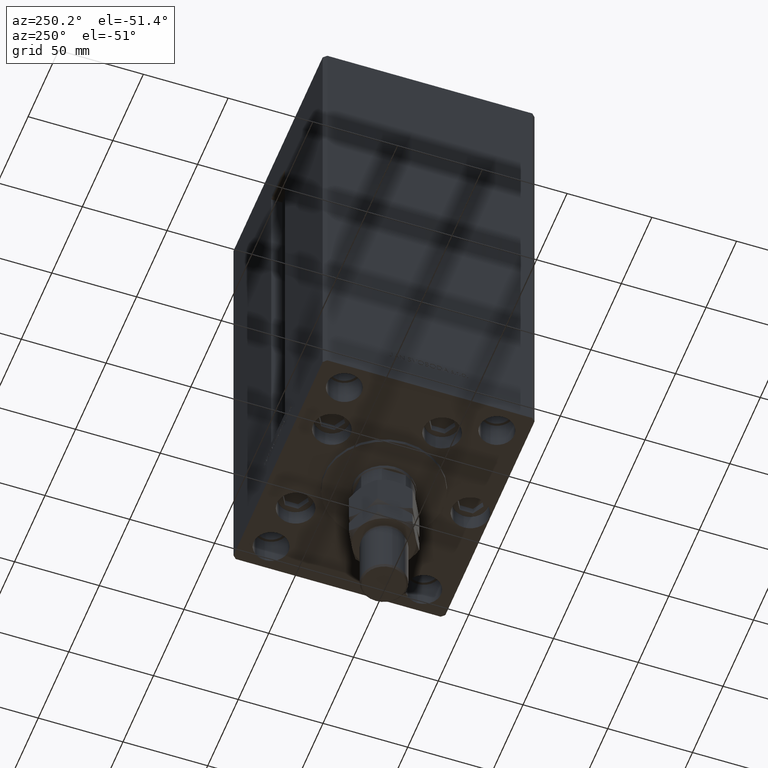
[diagram: clean part render]
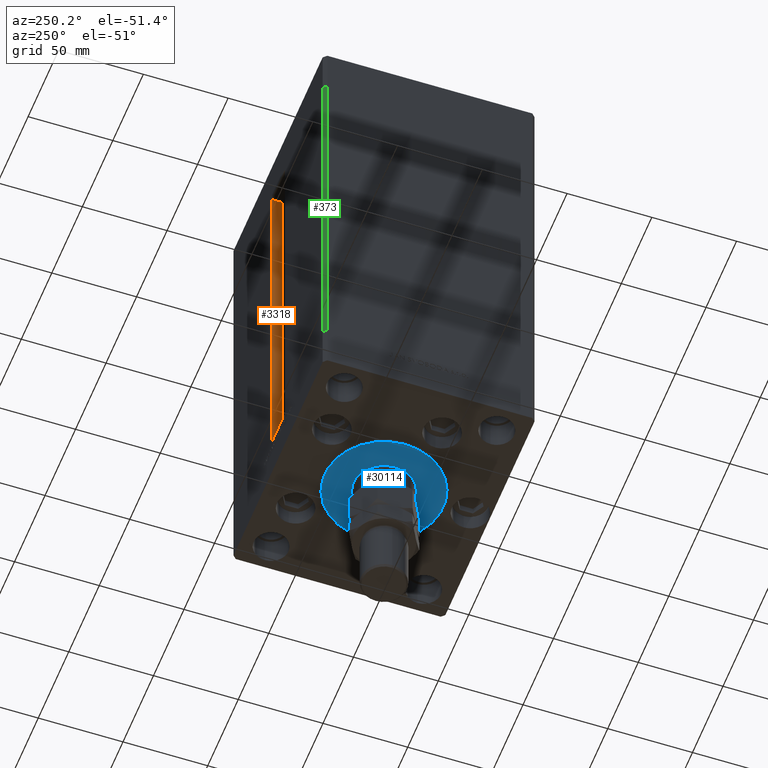
[diagram: same view with three faces highlighted in distinct colors, each labeled with its STEP entity id]
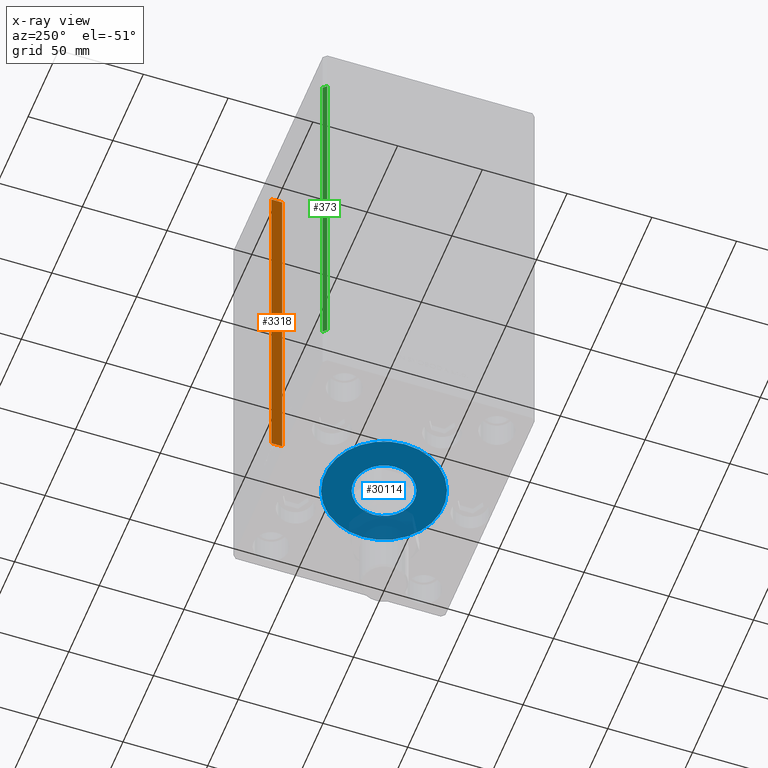
[diagram: x-ray of the same camera — body ghosted, the three highlighted faces saturated]
A machine part, auxiliary view with three faces highlighted in distinct colors.
The next image is the same camera in x-ray (body ghosted, the three faces saturated) — at least one of them is partly hidden behind the body in this view.
Their STEP definitions:

[orange] entity #3318 — the highlighted planar face has unit normal (1, 0, 0).
#1662 = ORIENTED_EDGE ( 'NONE', *, *, #35044, .T. ) ;
#3313 = VERTEX_POINT ( 'NONE', #21295 ) ;
#3318 = ADVANCED_FACE ( 'NONE', ( #18208 ), #41003, .F. ) ;
#5391 = VECTOR ( 'NONE', #8658, 1000.000000000000000 ) ;
#8658 = DIRECTION ( 'NONE',  ( 0.000000000000000000, 1.000000000000000000, 0.000000000000000000 ) ) ;
#9702 = VECTOR ( 'NONE', #11233, 1000.000000000000000 ) ;
#9872 = CARTESIAN_POINT ( 'NONE',  ( 11.25000000000000178, 55.99999999999999289, 0.000000000000000000 ) ) ;
#11233 = DIRECTION ( 'NONE',  ( -0.000000000000000000, -1.000000000000000000, 0.000000000000000000 ) ) ;
#11585 = AXIS2_PLACEMENT_3D ( 'NONE', #17965, #49156, #29706 ) ;
#11787 = CARTESIAN_POINT ( 'NONE',  ( 11.25000000000000178, 62.49999999999999289, 0.000000000000000000 ) ) ;
#13227 = LINE ( 'NONE', #28808, #38272 ) ;
#13738 = ORIENTED_EDGE ( 'NONE', *, *, #48029, .F. ) ;
#16193 = VERTEX_POINT ( 'NONE', #11787 ) ;
#16557 = EDGE_CURVE ( 'NONE', #42452, #16193, #28079, .T. ) ;
#17965 = CARTESIAN_POINT ( 'NONE',  ( 11.25000000000000178, 55.99999999999999289, 0.000000000000000000 ) ) ;
#18129 = VERTEX_POINT ( 'NONE', #35434 ) ;
#18208 = FACE_OUTER_BOUND ( 'NONE', #28947, .T. ) ;
#19052 = ORIENTED_EDGE ( 'NONE', *, *, #16557, .F. ) ;
#19325 = DIRECTION ( 'NONE',  ( -0.000000000000000000, -0.000000000000000000, 1.000000000000000000 ) ) ;
#21295 = CARTESIAN_POINT ( 'NONE',  ( 11.25000000000000178, 55.99999999999999289, 217.0000000000000000 ) ) ;
#25973 = DIRECTION ( 'NONE',  ( -0.000000000000000000, -0.000000000000000000, 1.000000000000000000 ) ) ;
#28079 = LINE ( 'NONE', #43710, #5391 ) ;
#28808 = CARTESIAN_POINT ( 'NONE',  ( 11.25000000000000178, 62.49999999999999289, 0.000000000000000000 ) ) ;
#28947 = EDGE_LOOP ( 'NONE', ( #13738, #19052, #1662, #43680 ) ) ;
#29706 = DIRECTION ( 'NONE',  ( 0.000000000000000000, 0.000000000000000000, -1.000000000000000000 ) ) ;
#30648 = LINE ( 'NONE', #46274, #9702 ) ;
#33792 = CARTESIAN_POINT ( 'NONE',  ( 11.25000000000000178, 55.99999999999999289, 0.000000000000000000 ) ) ;
#33864 = VECTOR ( 'NONE', #25973, 1000.000000000000000 ) ;
#35044 = EDGE_CURVE ( 'NONE', #42452, #3313, #44914, .T. ) ;
#35434 = CARTESIAN_POINT ( 'NONE',  ( 11.24999999999999467, 62.49999999999999289, 217.0000000000000000 ) ) ;
#38272 = VECTOR ( 'NONE', #19325, 1000.000000000000000 ) ;
#41003 = PLANE ( 'NONE',  #11585 ) ;
#42452 = VERTEX_POINT ( 'NONE', #33792 ) ;
#43680 = ORIENTED_EDGE ( 'NONE', *, *, #44909, .F. ) ;
#43710 = CARTESIAN_POINT ( 'NONE',  ( 11.25000000000000178, 55.99999999999999289, 0.000000000000000000 ) ) ;
#44909 = EDGE_CURVE ( 'NONE', #18129, #3313, #30648, .T. ) ;
#44914 = LINE ( 'NONE', #9872, #33864 ) ;
#46274 = CARTESIAN_POINT ( 'NONE',  ( 11.25000000000000178, 0.000000000000000000, 217.0000000000000000 ) ) ;
#48029 = EDGE_CURVE ( 'NONE', #16193, #18129, #13227, .T. ) ;
#49156 = DIRECTION ( 'NONE',  ( 1.000000000000000000, -0.000000000000000000, 0.000000000000000000 ) ) ;

[blue] entity #30114 — the highlighted planar face has unit normal (0, 0, -1).
#1076 = FACE_BOUND ( 'NONE', #4563, .T. ) ;
#1361 = ORIENTED_EDGE ( 'NONE', *, *, #22209, .F. ) ;
#4563 = EDGE_LOOP ( 'NONE', ( #18467, #1361 ) ) ;
#4697 = VERTEX_POINT ( 'NONE', #24771 ) ;
#4902 = CARTESIAN_POINT ( 'NONE',  ( 18.00000000000000000, -6.938893903907228378E-15, 2.000000000000000000 ) ) ;
#6710 = CARTESIAN_POINT ( 'NONE',  ( 0.000000000000000000, -6.938893903907228378E-15, 2.000000000000000000 ) ) ;
#7759 = CIRCLE ( 'NONE', #33899, 35.00000000000000711 ) ;
#9013 = DIRECTION ( 'NONE',  ( 1.000000000000000000, 0.000000000000000000, -0.000000000000000000 ) ) ;
#14400 = DIRECTION ( 'NONE',  ( 0.000000000000000000, 0.000000000000000000, 1.000000000000000000 ) ) ;
#15936 = FACE_OUTER_BOUND ( 'NONE', #32273, .T. ) ;
#16117 = CIRCLE ( 'NONE', #50413, 18.00000000000000000 ) ;
#16589 = VERTEX_POINT ( 'NONE', #50594 ) ;
#16695 = CARTESIAN_POINT ( 'NONE',  ( 0.000000000000000000, -6.938893903907228378E-15, 2.000000000000000000 ) ) ;
#16944 = PLANE ( 'NONE',  #37122 ) ;
#18467 = ORIENTED_EDGE ( 'NONE', *, *, #44954, .F. ) ;
#18484 = DIRECTION ( 'NONE',  ( 1.000000000000000000, 0.000000000000000000, 0.000000000000000000 ) ) ;
#19665 = DIRECTION ( 'NONE',  ( 0.000000000000000000, 0.000000000000000000, 1.000000000000000000 ) ) ;
#20105 = VERTEX_POINT ( 'NONE', #29577 ) ;
#22209 = EDGE_CURVE ( 'NONE', #20105, #45497, #37478, .T. ) ;
#22884 = DIRECTION ( 'NONE',  ( 0.000000000000000000, 0.000000000000000000, 1.000000000000000000 ) ) ;
#24118 = DIRECTION ( 'NONE',  ( 0.000000000000000000, 0.000000000000000000, 1.000000000000000000 ) ) ;
#24290 = EDGE_CURVE ( 'NONE', #4697, #16589, #49618, .T. ) ;
#24771 = CARTESIAN_POINT ( 'NONE',  ( -35.00000000000000711, -6.938893903907228378E-15, 2.000000000000000000 ) ) ;
#27996 = DIRECTION ( 'NONE',  ( 1.000000000000000000, 0.000000000000000000, 0.000000000000000000 ) ) ;
#29577 = CARTESIAN_POINT ( 'NONE',  ( -18.00000000000000000, -4.734529665441992555E-15, 2.000000000000000000 ) ) ;
#30043 = CARTESIAN_POINT ( 'NONE',  ( 0.000000000000000000, -6.938893903907228378E-15, 2.000000000000000000 ) ) ;
#30114 = ADVANCED_FACE ( 'NONE', ( #1076, #15936 ), #16944, .T. ) ;
#32273 = EDGE_LOOP ( 'NONE', ( #42101, #43164 ) ) ;
#33899 = AXIS2_PLACEMENT_3D ( 'NONE', #6710, #14400, #18484 ) ;
#35368 = EDGE_CURVE ( 'NONE', #16589, #4697, #7759, .T. ) ;
#36557 = AXIS2_PLACEMENT_3D ( 'NONE', #39109, #19665, #46009 ) ;
#37122 = AXIS2_PLACEMENT_3D ( 'NONE', #16695, #24118, #9013 ) ;
#37478 = CIRCLE ( 'NONE', #42371, 18.00000000000000000 ) ;
#39109 = CARTESIAN_POINT ( 'NONE',  ( 0.000000000000000000, -6.938893903907228378E-15, 2.000000000000000000 ) ) ;
#39275 = CARTESIAN_POINT ( 'NONE',  ( 0.000000000000000000, -6.938893903907228378E-15, 2.000000000000000000 ) ) ;
#42101 = ORIENTED_EDGE ( 'NONE', *, *, #24290, .T. ) ;
#42334 = DIRECTION ( 'NONE',  ( 1.000000000000000000, 0.000000000000000000, 0.000000000000000000 ) ) ;
#42371 = AXIS2_PLACEMENT_3D ( 'NONE', #39275, #44126, #27996 ) ;
#43164 = ORIENTED_EDGE ( 'NONE', *, *, #35368, .T. ) ;
#44126 = DIRECTION ( 'NONE',  ( 0.000000000000000000, 0.000000000000000000, 1.000000000000000000 ) ) ;
#44954 = EDGE_CURVE ( 'NONE', #45497, #20105, #16117, .T. ) ;
#45497 = VERTEX_POINT ( 'NONE', #4902 ) ;
#46009 = DIRECTION ( 'NONE',  ( 1.000000000000000000, 0.000000000000000000, 0.000000000000000000 ) ) ;
#49618 = CIRCLE ( 'NONE', #36557, 35.00000000000000711 ) ;
#50413 = AXIS2_PLACEMENT_3D ( 'NONE', #30043, #22884, #42334 ) ;
#50594 = CARTESIAN_POINT ( 'NONE',  ( 35.00000000000000711, -2.652630106891490698E-15, 2.000000000000000000 ) ) ;

[green] entity #373 — the highlighted planar face has unit normal (0.7071, -0.7071, 0).
#373 = ADVANCED_FACE ( 'NONE', ( #47055 ), #40156, .F. ) ;
#2598 = VERTEX_POINT ( 'NONE', #48852 ) ;
#3086 = DIRECTION ( 'NONE',  ( -0.000000000000000000, -0.000000000000000000, -1.000000000000000000 ) ) ;
#3295 = DIRECTION ( 'NONE',  ( -0.7071067811865474617, -0.7071067811865474617, 0.000000000000000000 ) ) ;
#5287 = VECTOR ( 'NONE', #3086, 1000.000000000000000 ) ;
#7155 = VECTOR ( 'NONE', #11773, 1000.000000000000114 ) ;
#11773 = DIRECTION ( 'NONE',  ( -0.7071067811865474617, -0.7071067811865474617, 0.000000000000000000 ) ) ;
#12646 = EDGE_CURVE ( 'NONE', #41797, #18748, #37627, .T. ) ;
#14997 = EDGE_LOOP ( 'NONE', ( #50283, #27287, #16382, #23419 ) ) ;
#16382 = ORIENTED_EDGE ( 'NONE', *, *, #17132, .F. ) ;
#17132 = EDGE_CURVE ( 'NONE', #41797, #23577, #17159, .T. ) ;
#17159 = LINE ( 'NONE', #38343, #42188 ) ;
#18748 = VERTEX_POINT ( 'NONE', #39394 ) ;
#19689 = DIRECTION ( 'NONE',  ( 0.7071067811865474617, 0.7071067811865474617, 0.000000000000000000 ) ) ;
#23419 = ORIENTED_EDGE ( 'NONE', *, *, #12646, .T. ) ;
#23577 = VERTEX_POINT ( 'NONE', #36071 ) ;
#27287 = ORIENTED_EDGE ( 'NONE', *, *, #39537, .F. ) ;
#27866 = LINE ( 'NONE', #39668, #7155 ) ;
#30403 = DIRECTION ( 'NONE',  ( -0.000000000000000000, -0.000000000000000000, -1.000000000000000000 ) ) ;
#31959 = DIRECTION ( 'NONE',  ( 0.7071067811865475727, -0.7071067811865475727, 0.000000000000000000 ) ) ;
#35016 = LINE ( 'NONE', #46527, #48743 ) ;
#36071 = CARTESIAN_POINT ( 'NONE',  ( -75.00000000000001421, 60.50000000000000000, 217.0000000000000000 ) ) ;
#37627 = LINE ( 'NONE', #37875, #5287 ) ;
#37629 = AXIS2_PLACEMENT_3D ( 'NONE', #47571, #31959, #19689 ) ;
#37875 = CARTESIAN_POINT ( 'NONE',  ( -73.00000000000001421, 62.50000000000000000, 217.0000000000000000 ) ) ;
#38343 = CARTESIAN_POINT ( 'NONE',  ( -73.00000000000001421, 62.50000000000000000, 217.0000000000000000 ) ) ;
#39394 = CARTESIAN_POINT ( 'NONE',  ( -73.00000000000001421, 62.50000000000000000, 0.000000000000000000 ) ) ;
#39537 = EDGE_CURVE ( 'NONE', #23577, #2598, #35016, .T. ) ;
#39593 = CARTESIAN_POINT ( 'NONE',  ( -73.00000000000001421, 62.50000000000000000, 217.0000000000000000 ) ) ;
#39668 = CARTESIAN_POINT ( 'NONE',  ( -73.00000000000001421, 62.50000000000000000, 0.000000000000000000 ) ) ;
#40156 = PLANE ( 'NONE',  #37629 ) ;
#41797 = VERTEX_POINT ( 'NONE', #39593 ) ;
#42188 = VECTOR ( 'NONE', #3295, 1000.000000000000114 ) ;
#42651 = EDGE_CURVE ( 'NONE', #18748, #2598, #27866, .T. ) ;
#46527 = CARTESIAN_POINT ( 'NONE',  ( -75.00000000000001421, 60.50000000000000000, 217.0000000000000000 ) ) ;
#47055 = FACE_OUTER_BOUND ( 'NONE', #14997, .T. ) ;
#47571 = CARTESIAN_POINT ( 'NONE',  ( -73.00000000000001421, 62.50000000000000000, 217.0000000000000000 ) ) ;
#48743 = VECTOR ( 'NONE', #30403, 1000.000000000000000 ) ;
#48852 = CARTESIAN_POINT ( 'NONE',  ( -75.00000000000001421, 60.50000000000000000, 0.000000000000000000 ) ) ;
#50283 = ORIENTED_EDGE ( 'NONE', *, *, #42651, .T. ) ;